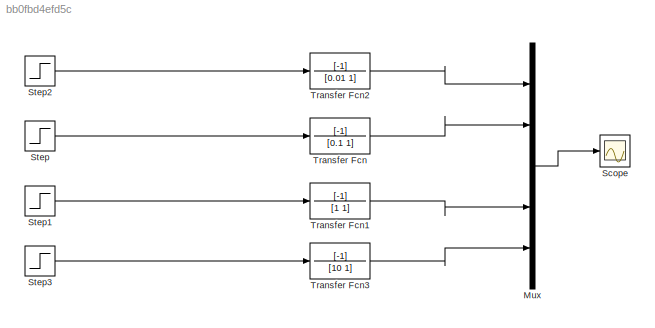
MODEL slx_bb0fbd4efd5c
KIND model
CONFIG AbsTol = auto
CONFIG EnableMultiTasking = off
CONFIG FixedStep = auto
CONFIG MaxStep = auto
CONFIG MinStep = auto
CONFIG RelTol = 1e-3
CONFIG SampleTimeConstraint = Unconstrained
CONFIG SolverName = VariableStepAuto
CONFIG StartTime = 0.0
CONFIG StopTime = 10.0
BLOCK [Mux] Mux
  DisplayOption = bar
  Inputs = 5
BLOCK [Scope] Scope
  Floating = off
  NumInputPorts = 1
  ScopeSpecificationString = Simulink.scopes.TimeScopeBlockCfg('CurrentConfiguration', extmgr.ConfigurationSet(extmgr.Configuration('Core','General UI',true),extmgr.Configuration('Core','Source UI',true),extmgr.Configuration('Sources','WiredSimulink',true),extmgr.Configuration('Visuals','Time Domain',true,'SerializedDisplays',{struct('MinYLimReal','-1.125','MaxYLimReal','0.125','YLabelReal','','MinYLimMag','0.00000','MaxYLimM...<+1456ch>
BLOCK [Step] Step
  SampleTime = 0
BLOCK [Step] Step1
  SampleTime = 0
BLOCK [Step] Step2
  SampleTime = 0
BLOCK [Step] Step3
  SampleTime = 0
BLOCK [TransferFcn] Transfer Fcn
  Denominator = [0.1 1]
  Numerator = [-1]
BLOCK [TransferFcn] Transfer Fcn1
  Denominator = [1 1]
  Numerator = [-1]
BLOCK [TransferFcn] Transfer Fcn2
  Denominator = [0.01 1]
  Numerator = [-1]
BLOCK [TransferFcn] Transfer Fcn3
  Denominator = [10 1]
  Numerator = [-1]
LINE Mux:1 -> Scope:1
LINE Step1:1 -> Transfer Fcn1:1
LINE Step2:1 -> Transfer Fcn2:1
LINE Step3:1 -> Transfer Fcn3:1
LINE Step:1 -> Transfer Fcn:1
LINE Transfer Fcn1:1 -> Mux:4
LINE Transfer Fcn2:1 -> Mux:1
LINE Transfer Fcn3:1 -> Mux:5
LINE Transfer Fcn:1 -> Mux:2
